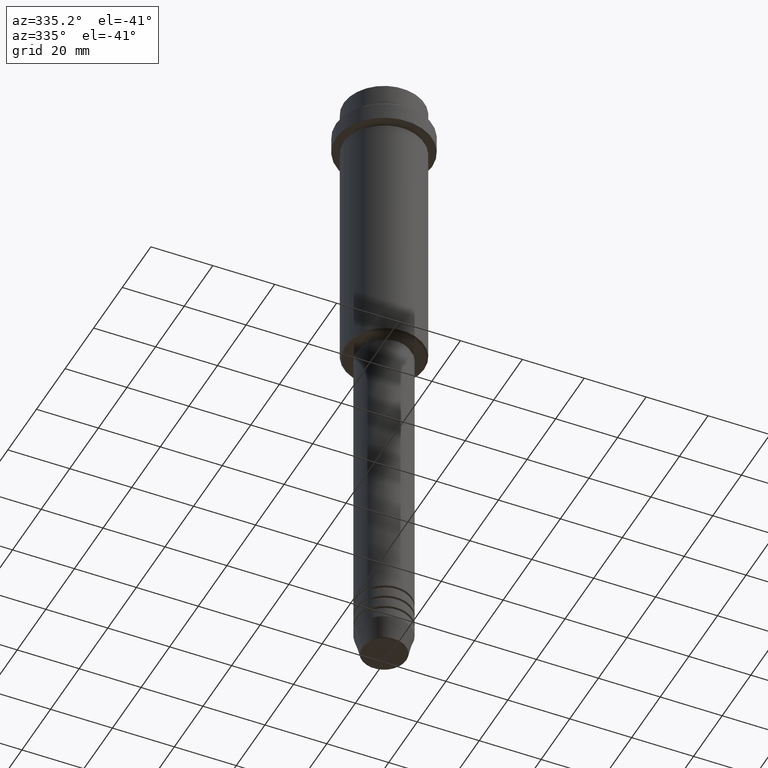
[diagram: clean part render]
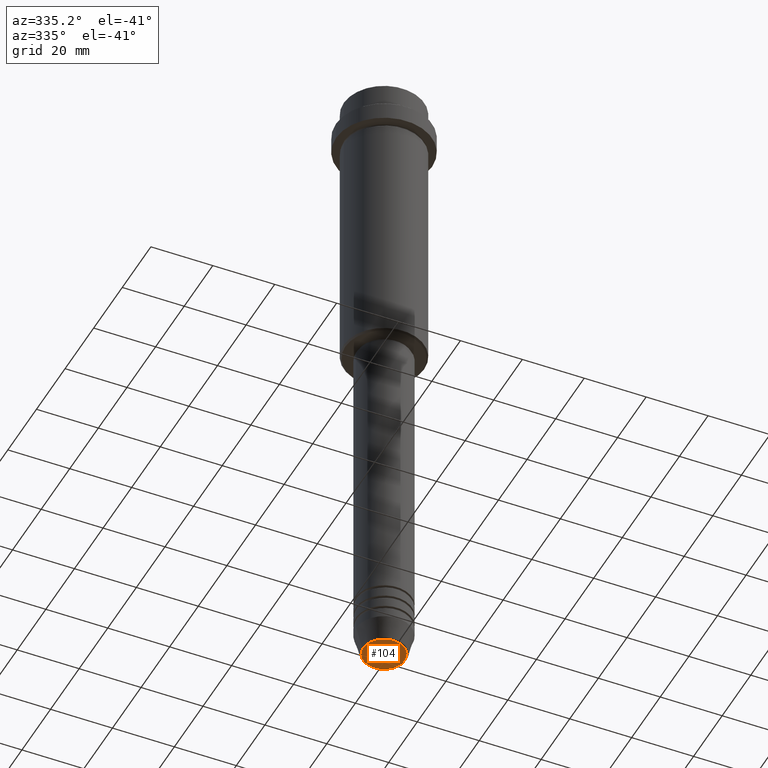
[diagram: same view with one face highlighted and labeled with its STEP entity id]
A machine part, auxiliary view. The second image highlights one B-rep face of the part: STEP entity #104.
In plain terms, the highlighted planar face has unit normal (0, -0, 1).
Its self-contained STEP definition (entity closure, byte-faithful):
#73 = CARTESIAN_POINT ( 'NONE',  ( 0.000000000000000000, 0.000000000000000000, -210.0000000000000284 ) ) ;
#75 = AXIS2_PLACEMENT_3D ( 'NONE', #205, #453, #1331 ) ;
#104 = ADVANCED_FACE ( 'NONE', ( #424 ), #571, .F. ) ;
#129 = DIRECTION ( 'NONE',  ( 0.000000000000000000, 0.000000000000000000, -1.000000000000000000 ) ) ;
#175 = CIRCLE ( 'NONE', #628, 6.740692158992663607 ) ;
#190 = EDGE_CURVE ( 'NONE', #1018, #480, #984, .T. ) ;
#205 = CARTESIAN_POINT ( 'NONE',  ( 0.000000000000000000, 0.000000000000000000, -210.0000000000000284 ) ) ;
#244 = ORIENTED_EDGE ( 'NONE', *, *, #1279, .T. ) ;
#414 = CARTESIAN_POINT ( 'NONE',  ( 6.740692158992663607, 0.000000000000000000, -210.0000000000000284 ) ) ;
#424 = FACE_OUTER_BOUND ( 'NONE', #1052, .T. ) ;
#453 = DIRECTION ( 'NONE',  ( 0.000000000000000000, -0.000000000000000000, 1.000000000000000000 ) ) ;
#480 = VERTEX_POINT ( 'NONE', #414 ) ;
#571 = PLANE ( 'NONE',  #75 ) ;
#628 = AXIS2_PLACEMENT_3D ( 'NONE', #73, #843, #1048 ) ;
#659 = CARTESIAN_POINT ( 'NONE',  ( -6.740692158992663607, 8.550696569392697514E-16, -210.0000000000000284 ) ) ;
#784 = DIRECTION ( 'NONE',  ( 1.000000000000000000, 0.000000000000000000, 0.000000000000000000 ) ) ;
#795 = ORIENTED_EDGE ( 'NONE', *, *, #190, .T. ) ;
#843 = DIRECTION ( 'NONE',  ( 0.000000000000000000, 0.000000000000000000, -1.000000000000000000 ) ) ;
#891 = CARTESIAN_POINT ( 'NONE',  ( 0.000000000000000000, 0.000000000000000000, -210.0000000000000284 ) ) ;
#984 = CIRCLE ( 'NONE', #1126, 6.740692158992663607 ) ;
#1018 = VERTEX_POINT ( 'NONE', #659 ) ;
#1048 = DIRECTION ( 'NONE',  ( 1.000000000000000000, 0.000000000000000000, 0.000000000000000000 ) ) ;
#1052 = EDGE_LOOP ( 'NONE', ( #244, #795 ) ) ;
#1126 = AXIS2_PLACEMENT_3D ( 'NONE', #891, #129, #784 ) ;
#1279 = EDGE_CURVE ( 'NONE', #480, #1018, #175, .T. ) ;
#1331 = DIRECTION ( 'NONE',  ( 1.000000000000000000, 0.000000000000000000, 0.000000000000000000 ) ) ;